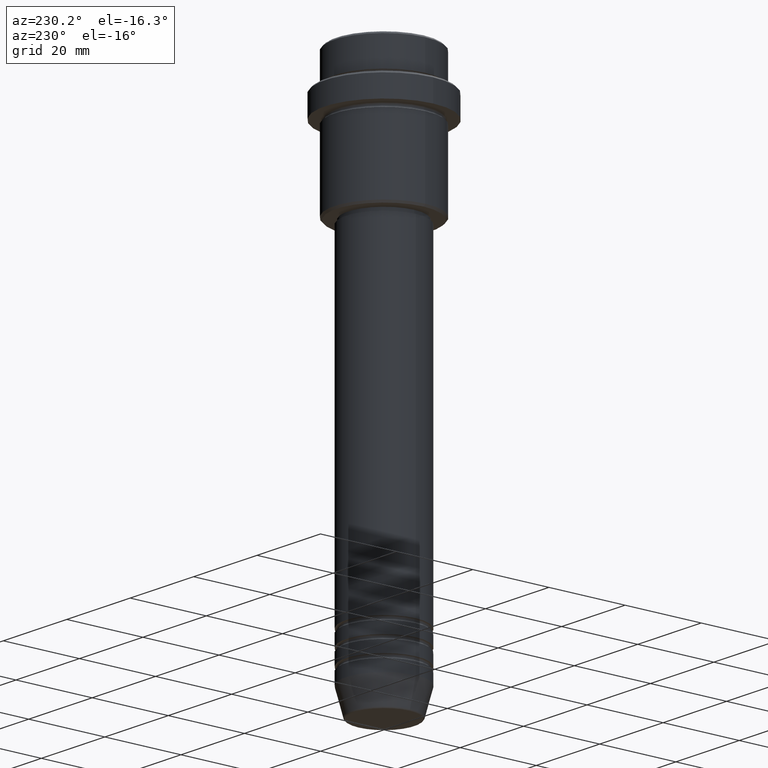
[diagram: clean part render]
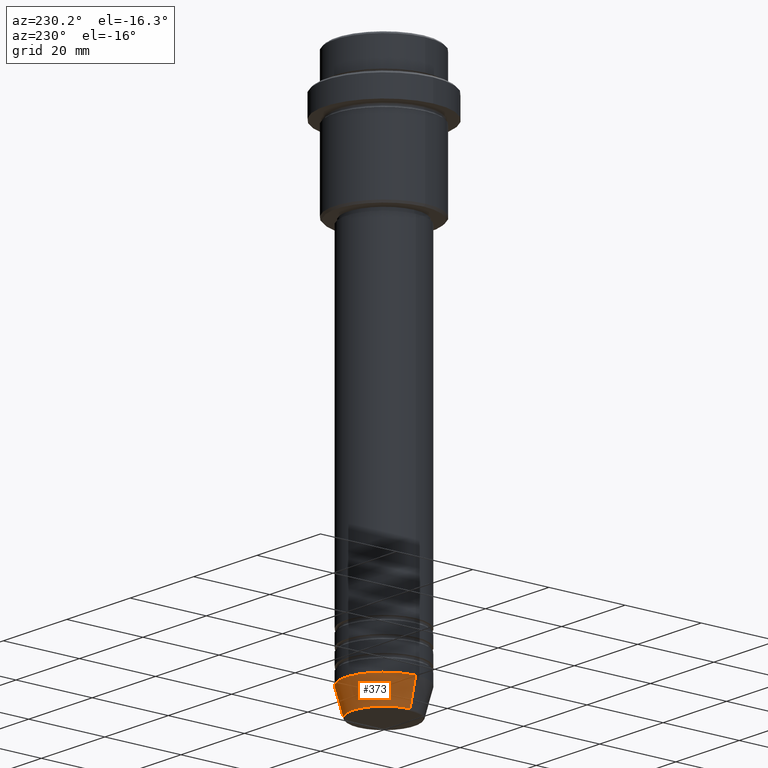
[diagram: same view with one face highlighted and labeled with its STEP entity id]
A machine part, auxiliary view. The second image highlights one B-rep face of the part: STEP entity #373.
In plain terms, the highlighted conical surface has half-angle 15 deg.
Its self-contained STEP definition (entity closure, byte-faithful):
#17 = CARTESIAN_POINT ( 'NONE',  ( 0.000000000000000000, 0.000000000000000000, -140.6294095225512422 ) ) ;
#38 = ORIENTED_EDGE ( 'NONE', *, *, #401, .T. ) ;
#118 = FACE_OUTER_BOUND ( 'NONE', #1293, .T. ) ;
#135 = VERTEX_POINT ( 'NONE', #305 ) ;
#179 = AXIS2_PLACEMENT_3D ( 'NONE', #900, #581, #458 ) ;
#198 = VERTEX_POINT ( 'NONE', #327 ) ;
#305 = CARTESIAN_POINT ( 'NONE',  ( 8.223655072137189492, 0.000000000000000000, -140.6294095225512422 ) ) ;
#322 = DIRECTION ( 'NONE',  ( 0.2588190451025214611, 0.000000000000000000, 0.9659258262890679791 ) ) ;
#327 = CARTESIAN_POINT ( 'NONE',  ( 10.00000000000000000, 0.000000000000000000, -133.9999999999999716 ) ) ;
#333 = EDGE_CURVE ( 'NONE', #198, #500, #595, .T. ) ;
#344 = ORIENTED_EDGE ( 'NONE', *, *, #333, .F. ) ;
#373 = ADVANCED_FACE ( 'NONE', ( #118 ), #417, .T. ) ;
#401 = EDGE_CURVE ( 'NONE', #436, #500, #634, .T. ) ;
#417 = CONICAL_SURFACE ( 'NONE', #547, 10.00000000000000000, 0.2617993877991502405 ) ;
#430 = ORIENTED_EDGE ( 'NONE', *, *, #750, .T. ) ;
#436 = VERTEX_POINT ( 'NONE', #820 ) ;
#444 = AXIS2_PLACEMENT_3D ( 'NONE', #17, #578, #1015 ) ;
#458 = DIRECTION ( 'NONE',  ( 1.000000000000000000, 0.000000000000000000, 0.000000000000000000 ) ) ;
#500 = VERTEX_POINT ( 'NONE', #854 ) ;
#534 = DIRECTION ( 'NONE',  ( -0.2588190451025214611, 3.169619151431774186E-17, 0.9659258262890679791 ) ) ;
#547 = AXIS2_PLACEMENT_3D ( 'NONE', #1213, #1106, #891 ) ;
#578 = DIRECTION ( 'NONE',  ( -0.000000000000000000, -0.000000000000000000, 1.000000000000000000 ) ) ;
#581 = DIRECTION ( 'NONE',  ( -0.000000000000000000, -0.000000000000000000, 1.000000000000000000 ) ) ;
#595 = CIRCLE ( 'NONE', #179, 10.00000000000000000 ) ;
#634 = LINE ( 'NONE', #1164, #1210 ) ;
#656 = LINE ( 'NONE', #1067, #828 ) ;
#720 = ORIENTED_EDGE ( 'NONE', *, *, #972, .F. ) ;
#750 = EDGE_CURVE ( 'NONE', #135, #436, #961, .T. ) ;
#820 = CARTESIAN_POINT ( 'NONE',  ( -8.223655072137189492, 1.115877042642911856E-15, -140.6294095225512422 ) ) ;
#828 = VECTOR ( 'NONE', #322, 1000.000000000000114 ) ;
#854 = CARTESIAN_POINT ( 'NONE',  ( -10.00000000000000000, 1.224646799147353256E-15, -133.9999999999999716 ) ) ;
#891 = DIRECTION ( 'NONE',  ( 1.000000000000000000, 0.000000000000000000, 0.000000000000000000 ) ) ;
#900 = CARTESIAN_POINT ( 'NONE',  ( 0.000000000000000000, 0.000000000000000000, -133.9999999999999716 ) ) ;
#961 = CIRCLE ( 'NONE', #444, 8.223655072137189492 ) ;
#972 = EDGE_CURVE ( 'NONE', #135, #198, #656, .T. ) ;
#1015 = DIRECTION ( 'NONE',  ( 1.000000000000000000, 0.000000000000000000, 0.000000000000000000 ) ) ;
#1067 = CARTESIAN_POINT ( 'NONE',  ( 10.00000000000000000, 0.000000000000000000, -133.9999999999999716 ) ) ;
#1106 = DIRECTION ( 'NONE',  ( -0.000000000000000000, -0.000000000000000000, 1.000000000000000000 ) ) ;
#1164 = CARTESIAN_POINT ( 'NONE',  ( -10.00000000000000000, 1.224646799147353256E-15, -133.9999999999999716 ) ) ;
#1210 = VECTOR ( 'NONE', #534, 1000.000000000000114 ) ;
#1213 = CARTESIAN_POINT ( 'NONE',  ( 0.000000000000000000, 0.000000000000000000, -133.9999999999999716 ) ) ;
#1293 = EDGE_LOOP ( 'NONE', ( #430, #38, #344, #720 ) ) ;